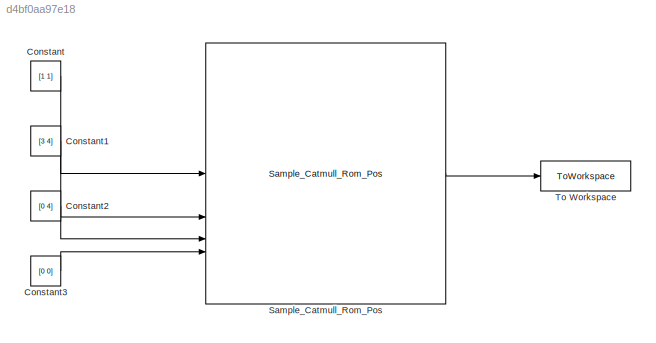
MODEL slx_d4bf0aa97e18
KIND model
CONFIG AbsTol = auto
CONFIG EnableMultiTasking = off
CONFIG FixedStep = auto
CONFIG MaxStep = auto
CONFIG MinStep = auto
CONFIG RelTol = 1e-3
CONFIG SampleTimeConstraint = Unconstrained
CONFIG SolverName = VariableStepAuto
CONFIG StartTime = 0.0
CONFIG StopTime = 10.0
BLOCK [Constant] Constant
  Value = [1 1]
BLOCK [Constant] Constant1
  Value = [3 4]
BLOCK [Constant] Constant2
  Value = [0 4]
BLOCK [Constant] Constant3
  Value = [0 0]
BLOCK [Reference] Sample_Catmull_Rom_Pos  REF=Pathfinding_lib/Sample_Catmull_Rom_Pos
  SourceBlock = Pathfinding_lib/Sample_Catmull_Rom_Pos
  SourceType = SubSystem
BLOCK [ToWorkspace] To Workspace
  FixptAsFi = on
  MaxDataPoints = inf
  SampleTime = 20
  VariableName = simout
LINE Constant1:1 -> Sample_Catmull_Rom_Pos:2
LINE Constant2:1 -> Sample_Catmull_Rom_Pos:3
LINE Constant3:1 -> Sample_Catmull_Rom_Pos:4
LINE Constant:1 -> Sample_Catmull_Rom_Pos:1
LINE Sample_Catmull_Rom_Pos:1 -> To Workspace:1
